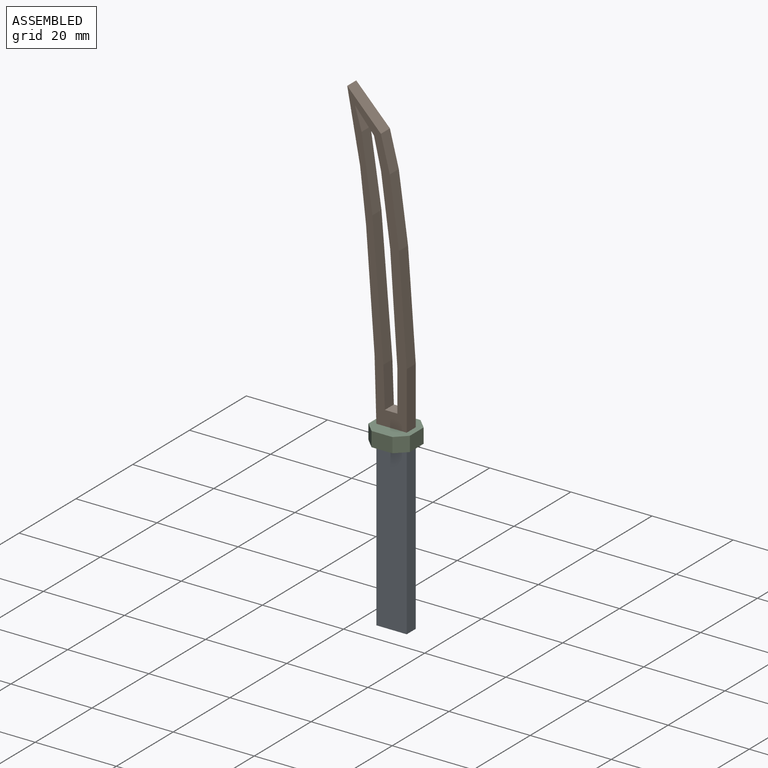
[diagram: assembled view]
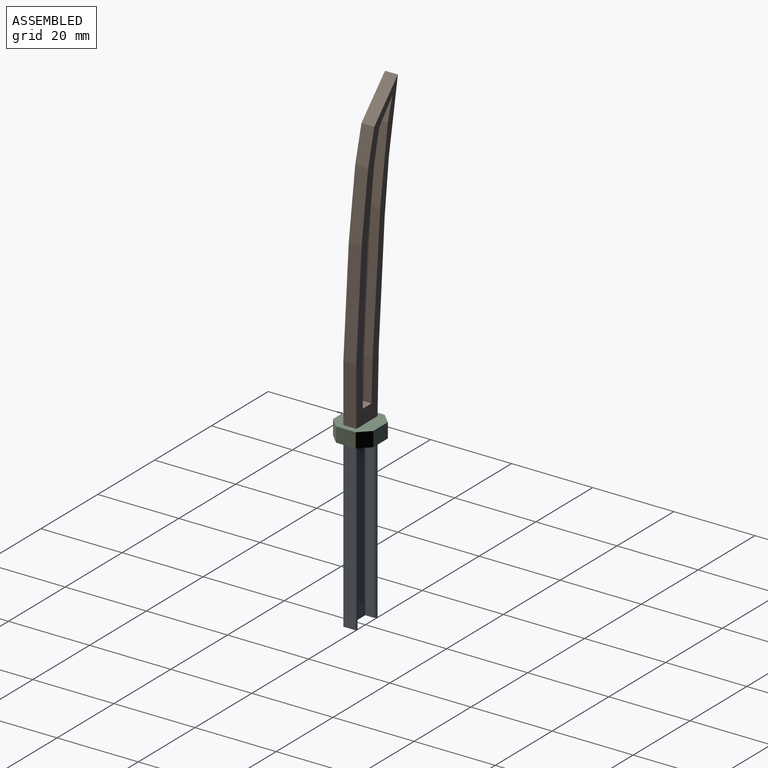
[diagram: assembled view, second angle]
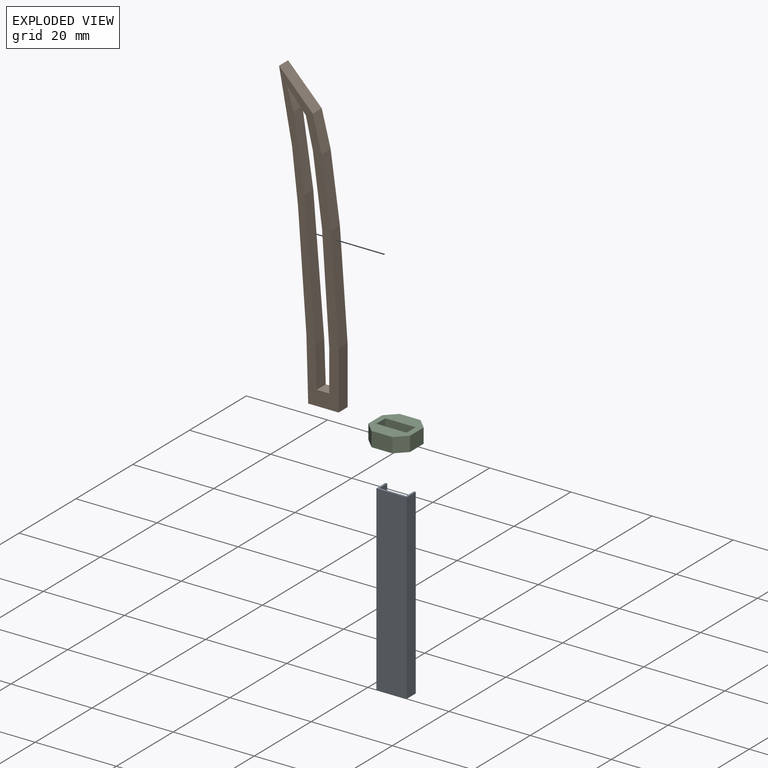
[diagram: exploded view]
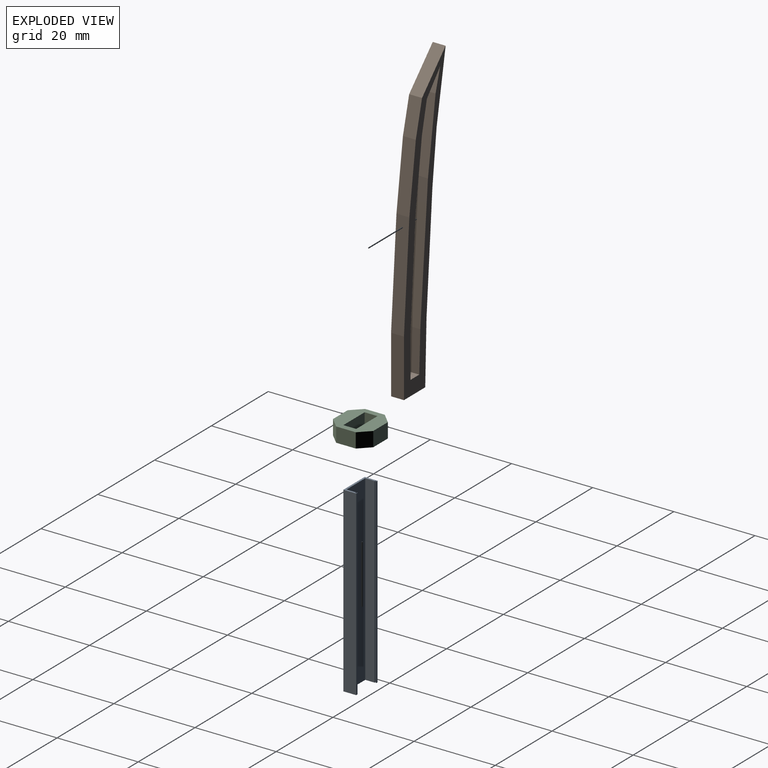
[diagram: exploded view, second angle]
ASSEMBLY  parts=3 mates=2
PART A: 28 faces, bbox 7.5x3.2x44.9 mm
  f0: plane 44.92x6.58mm, normal (0,1,0), area 295.4mm2, adj f14,f15,f20,f21,f22,f23,f24,f26
  f1: plane 44.92x0.26mm, normal (0,-1,0), area 11.5mm2, adj f2,f19,f20,f21
  f2: plane 44.92x0.12mm, normal (-1,0,0), area 5.3mm2, adj f1,f3,f20,f21
  f3: plane 44.92x0.46mm, normal (0,1,0), area 20.5mm2, adj f2,f4,f20,f21
  f4: plane 44.92x3.18mm, normal (1,0,0), area 142.6mm2, adj f3,f5,f20,f21
  f5: plane 44.92x7.49mm, normal (0,-1,0), area 336.4mm2, adj f4,f6,f20,f21
  f6: plane 44.92x3.18mm, normal (-1,0,0), area 142.6mm2, adj f5,f7,f20,f21
  f7: plane 44.92x0.46mm, normal (0,1,0), area 20.5mm2, adj f6,f8,f20,f21
  f8: plane 44.92x0.12mm, normal (1,0,0), area 5.3mm2, adj f7,f9,f20,f21
  f9: plane 44.92x0.26mm, normal (0,-1,0), area 11.5mm2, adj f8,f10,f20,f21
  f10: plane 44.92x0.23mm, normal (1,0,0), area 10.4mm2, adj f9,f11,f20,f21
  f11: plane 44.92x0.26mm, normal (0,1,0), area 11.5mm2, adj f10,f12,f20,f21
  f12: plane 44.92x0.12mm, normal (1,0,0), area 5.3mm2, adj f11,f13,f20,f21
  f13: plane 44.92x0mm, normal (0,-1,0), area 0mm2, adj f12,f14,f20,f21
  f14: plane 44.92x2.24mm, normal (1,0,0), area 100.4mm2, adj f0,f13,f20,f21
  f15: plane 44.92x2.24mm, normal (-1,0,0), area 100.4mm2, adj f0,f16,f20,f21
  f16: plane 44.92x0mm, normal (0,1,0), area 0mm2, adj f15,f17,f20,f21
  f17: plane 44.92x0.12mm, normal (-1,0,0), area 5.3mm2, adj f16,f18,f20,f21
  f18: plane 44.92x0.26mm, normal (0,1,0), area 11.5mm2, adj f17,f19,f20,f21
  f19: plane 44.92x0.23mm, normal (-1,0,0), area 10.4mm2, adj f1,f18,f20,f21
  f20: plane 7.49x3.18mm, normal (0,0,-1), area 5.9mm2, adj f0,f1,f2,f3,f4,f5,f6,f7
  f21: plane 7.49x3.18mm, normal (0,0,1), area 5.9mm2, adj f0,f1,f2,f3,f4,f5,f6,f7
  f22: plane 0.15x0.03mm, normal (-1,0,0), area 0mm2, adj f0,f23,f25,f26,f27
  f23: plane 0.49x0.01mm, normal (0,0,1), area 0mm2, adj f0,f22,f24,f27
  f24: plane 0.15x0.03mm, normal (1,0,0), area 0mm2, adj f0,f23,f25,f26,f27
  f25: plane 0.49x0.1mm, normal (0,1,0), area 0mm2, adj f22,f24,f26,f27
  f26: plane 0.49x0.03mm, normal (0,0.71,-0.71), area 0mm2, adj f0,f22,f24,f25
  f27: plane 0.49x0.03mm, normal (0,0.71,0.71), area 0mm2, adj f22,f23,f24,f25
PART B: 23 faces, bbox 14.7x3.2x73.4 mm
  f0: plane 17.9x3.18mm, normal (0.99,0,0.15), area 57.5mm2, adj f1,f20,f21,f22
  f1: plane 5.48x3.18mm, normal (0.96,0,0.28), area 18.1mm2, adj f0,f2,f21,f22
  f2: plane 5.48x4.68mm, normal (-0.76,0,-0.65), area 22.9mm2, adj f1,f3,f21,f22
  f3: plane 7.49x3.18mm, normal (-0.97,0,-0.23), area 24.4mm2, adj f2,f4,f21,f22
  f4: plane 16.71x3.18mm, normal (-0.99,0,-0.13), area 53.5mm2, adj f3,f5,f21,f22
  f5: plane 26.25x3.18mm, normal (-1,0,-0.07), area 83.5mm2, adj f4,f6,f21,f22
  f6: plane 9.97x3.18mm, normal (-1,0,0), area 31.7mm2, adj f5,f7,f21,f22
  f7: plane 3.18x3.1mm, normal (0,0,1), area 9.8mm2, adj f6,f8,f21,f22
  f8: plane 9.97x3.18mm, normal (1,0,0.04), area 31.7mm2, adj f7,f9,f21,f22
  f9: plane 32.54x3.18mm, normal (1,0,0.08), area 103.7mm2, adj f8,f20,f21,f22
  f10: plane 12.88x3.18mm, normal (-0.99,0,-0.11), area 41.2mm2, adj f11,f19,f21,f22
  f11: plane 28.33x3.18mm, normal (-1,0,-0.07), area 90.2mm2, adj f10,f12,f21,f22
  f12: plane 15.2x3.18mm, normal (-1,0,-0.03), area 48.3mm2, adj f11,f13,f21,f22
  f13: plane 7.49x3.18mm, normal (0,0,-1), area 23.8mm2, adj f12,f14,f21,f22
  f14: plane 14.15x3.18mm, normal (1,0,0), area 44.9mm2, adj f13,f15,f21,f22
  f15: plane 25.83x3.18mm, normal (1,0,0.07), area 82.2mm2, adj f14,f16,f21,f22
  f16: plane 16.43x3.18mm, normal (0.99,0,0.14), area 52.7mm2, adj f15,f17,f21,f22
  f17: plane 8.47x3.18mm, normal (0.97,0,0.25), area 27.8mm2, adj f16,f18,f21,f22
  f18: plane 8.47x8.3mm, normal (0.71,0,0.7), area 37.7mm2, adj f17,f19,f21,f22
  f19: plane 16.94x3.18mm, normal (-0.98,0,-0.18), area 54.7mm2, adj f10,f18,f21,f22
  f20: plane 3.18x0.01mm, normal (1,0,0), area 0mm2, adj f0,f9,f21,f22
  f21: plane 73.36x14.67mm, normal (0,-1,0), area 300.1mm2, adj f0,f1,f2,f3,f4,f5,f6,f7
  f22: plane 73.36x14.67mm, normal (0,1,0), area 300.1mm2, adj f0,f1,f2,f3,f4,f5,f6,f7
PART C: 14 faces, bbox 10.2x9.9x3.6 mm
  f0: plane 4.85x3.63mm, normal (1,0,0), area 17.6mm2, adj f8,f9,f10,f11
  f1: plane 5.14x3.63mm, normal (0,-1,0), area 18.6mm2, adj f8,f9,f10,f12
  f2: plane 4.85x3.63mm, normal (-1,0,0), area 17.6mm2, adj f8,f9,f12,f13
  f3: plane 7.49x3.63mm, normal (0,-1,0), area 27.2mm2, adj f4,f6,f8,f9
  f4: plane 3.63x3.18mm, normal (1,0,0), area 11.5mm2, adj f3,f5,f8,f9
  f5: plane 7.49x3.63mm, normal (0,1,0), area 27.2mm2, adj f4,f6,f8,f9
  f6: plane 3.63x3.18mm, normal (-1,0,0), area 11.5mm2, adj f3,f5,f8,f9
  f7: plane 5.14x3.63mm, normal (0,1,0), area 18.6mm2, adj f8,f9,f11,f13
  f8: plane 10.22x9.93mm, normal (0,0,-1), area 64.7mm2, adj f0,f1,f2,f3,f4,f5,f6,f7
  f9: plane 10.22x9.93mm, normal (0,0,1), area 64.7mm2, adj f0,f1,f2,f3,f4,f5,f6,f7
  f10: plane 3.63x2.54mm, normal (0.71,-0.71,0), area 13mm2, adj f0,f1,f8,f9
  f11: plane 3.63x2.54mm, normal (0.71,0.71,0), area 13mm2, adj f0,f7,f8,f9
  f12: plane 3.63x2.54mm, normal (-0.71,-0.71,0), area 13mm2, adj f1,f2,f8,f9
  f13: plane 3.63x2.54mm, normal (-0.71,0.71,0), area 13mm2, adj f2,f7,f8,f9
PLACE A t=(-0.01,0,-0.37)mm
PLACE B t=(-0.01,0,-0.37)mm
PLACE C t=(-0.01,0,-0.37)mm
MATE fastened C.f6 <-> B.f14  axis (-1,0,0) through (-28.2,-1.59,-0.37)mm
MATE fastened A.f5 <-> B.f21  axis (0,-1,0) through (-31.95,-3.17,-0.37)mm
